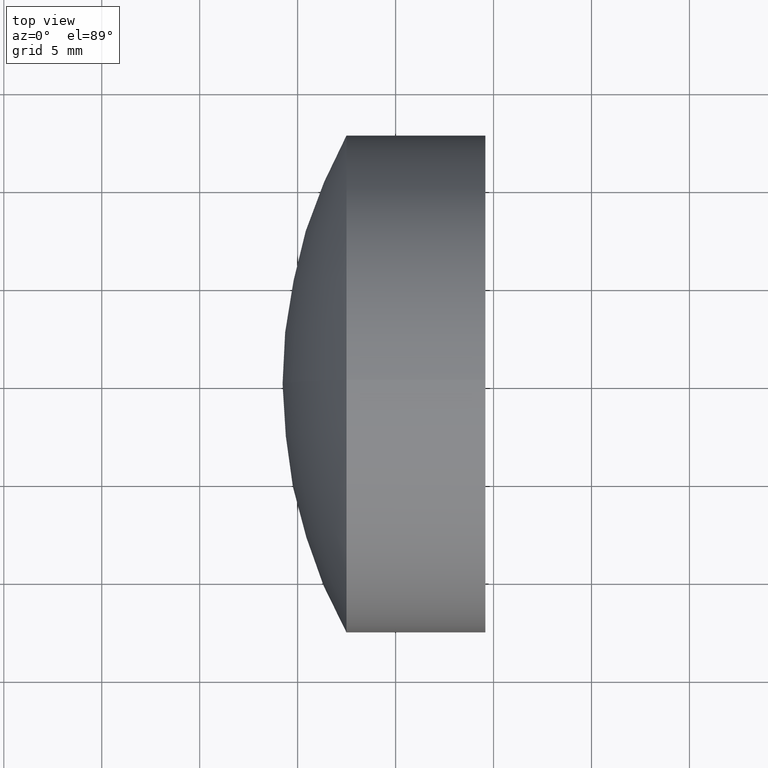
[diagram: clean part render]
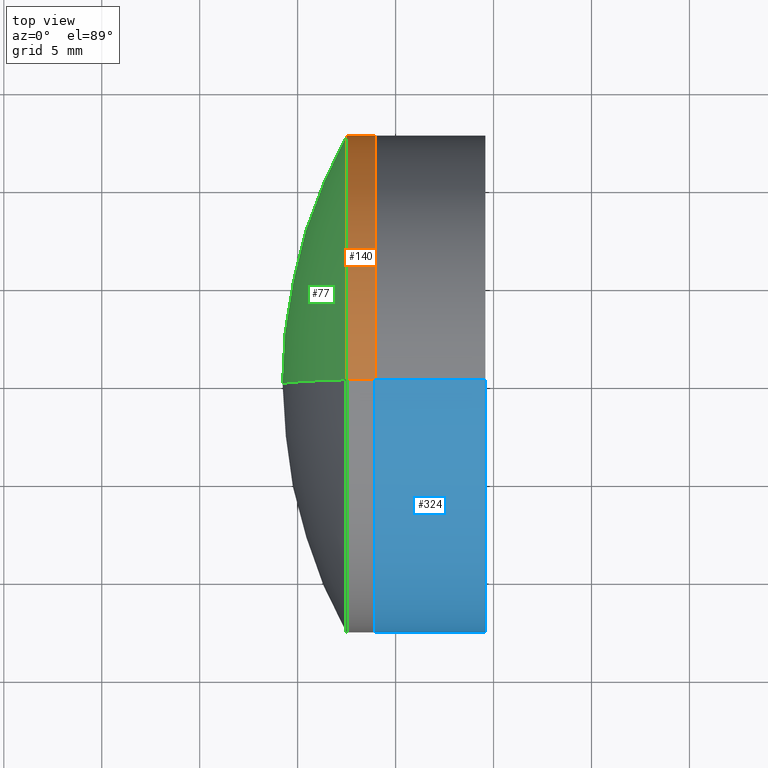
[diagram: same view with three faces highlighted in distinct colors, each labeled with its STEP entity id]
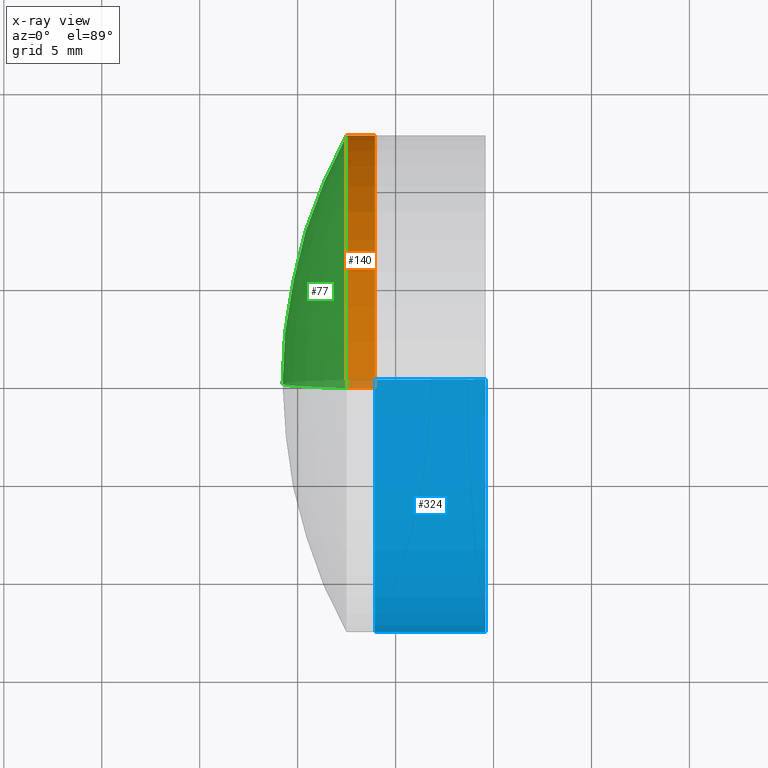
[diagram: x-ray of the same camera — body ghosted, the three highlighted faces saturated]
A machine part, top view with three faces highlighted in distinct colors.
The next image is the same camera in x-ray (body ghosted, the three faces saturated) — at least one of them is partly hidden behind the body in this view.
Their STEP definitions:

[orange] entity #140 — the highlighted cylindrical surface (partial cylindrical patch) has radius 12.7 mm, axis along (-1, -0, -0).
#6 = VERTEX_POINT ( 'NONE', #75 ) ;
#14 = EDGE_CURVE ( 'NONE', #327, #318, #218, .T. ) ;
#19 = EDGE_CURVE ( 'NONE', #6, #160, #177, .T. ) ;
#24 = DIRECTION ( 'NONE',  ( 0.0000000000000000000, 0.0000000000000000000, 1.000000000000000000 ) ) ;
#36 = EDGE_CURVE ( 'NONE', #327, #6, #191, .T. ) ;
#40 = ORIENTED_EDGE ( 'NONE', *, *, #19, .T. ) ;
#50 = DIRECTION ( 'NONE',  ( -1.000000000000000000, -0.0000000000000000000, -0.0000000000000000000 ) ) ;
#75 = CARTESIAN_POINT ( 'NONE',  ( 38.94353614673029500, 1.555301434917138000E-015, -12.69999999999999400 ) ) ;
#76 = CARTESIAN_POINT ( 'NONE',  ( 38.94353614673029500, 0.0000000000000000000, 12.69999999999999400 ) ) ;
#82 = DIRECTION ( 'NONE',  ( -1.000000000000000000, -0.0000000000000000000, -0.0000000000000000000 ) ) ;
#89 = DIRECTION ( 'NONE',  ( -1.000000000000000000, -0.0000000000000000000, -0.0000000000000000000 ) ) ;
#105 = AXIS2_PLACEMENT_3D ( 'NONE', #150, #82, #323 ) ;
#116 = CYLINDRICAL_SURFACE ( 'NONE', #105, 12.69999999999999400 ) ;
#140 = ADVANCED_FACE ( 'NONE', ( #153 ), #116, .T. ) ;
#144 = DIRECTION ( 'NONE',  ( 0.0000000000000000000, 0.0000000000000000000, 1.000000000000000000 ) ) ;
#150 = CARTESIAN_POINT ( 'NONE',  ( -0.8160621761658039000, 0.0000000000000000000, 0.0000000000000000000 ) ) ;
#153 = FACE_OUTER_BOUND ( 'NONE', #225, .T. ) ;
#158 = AXIS2_PLACEMENT_3D ( 'NONE', #264, #89, #24 ) ;
#160 = VERTEX_POINT ( 'NONE', #346 ) ;
#177 = LINE ( 'NONE', #204, #186 ) ;
#186 = VECTOR ( 'NONE', #50, 1000.000000000000000 ) ;
#191 = CIRCLE ( 'NONE', #158, 12.69999999999999400 ) ;
#199 = AXIS2_PLACEMENT_3D ( 'NONE', #246, #248, #144 ) ;
#200 = VECTOR ( 'NONE', #259, 1000.000000000000000 ) ;
#204 = CARTESIAN_POINT ( 'NONE',  ( -0.8160621761658039000, 1.555301434917138000E-015, -12.69999999999999400 ) ) ;
#218 = LINE ( 'NONE', #252, #200 ) ;
#222 = ORIENTED_EDGE ( 'NONE', *, *, #14, .F. ) ;
#225 = EDGE_LOOP ( 'NONE', ( #234, #40, #260, #222 ) ) ;
#234 = ORIENTED_EDGE ( 'NONE', *, *, #36, .T. ) ;
#246 = CARTESIAN_POINT ( 'NONE',  ( 37.49133736512716600, 0.0000000000000000000, 0.0000000000000000000 ) ) ;
#248 = DIRECTION ( 'NONE',  ( -1.000000000000000000, -0.0000000000000000000, -0.0000000000000000000 ) ) ;
#252 = CARTESIAN_POINT ( 'NONE',  ( -0.8160621761658039000, 0.0000000000000000000, 12.69999999999999400 ) ) ;
#259 = DIRECTION ( 'NONE',  ( -1.000000000000000000, -0.0000000000000000000, -0.0000000000000000000 ) ) ;
#260 = ORIENTED_EDGE ( 'NONE', *, *, #340, .F. ) ;
#261 = CARTESIAN_POINT ( 'NONE',  ( 37.49133736512716600, -1.555301434917138000E-015, 12.69999999999999600 ) ) ;
#264 = CARTESIAN_POINT ( 'NONE',  ( 38.94353614673029500, 0.0000000000000000000, 0.0000000000000000000 ) ) ;
#301 = CIRCLE ( 'NONE', #199, 12.69999999999999400 ) ;
#318 = VERTEX_POINT ( 'NONE', #261 ) ;
#323 = DIRECTION ( 'NONE',  ( 0.0000000000000000000, 0.0000000000000000000, 1.000000000000000000 ) ) ;
#327 = VERTEX_POINT ( 'NONE', #76 ) ;
#340 = EDGE_CURVE ( 'NONE', #318, #160, #301, .T. ) ;
#346 = CARTESIAN_POINT ( 'NONE',  ( 37.49133736512716600, 0.0000000000000000000, -12.69999999999999600 ) ) ;

[blue] entity #324 — the highlighted cylindrical surface (partial cylindrical patch) has radius 12.7 mm, axis along (-1, -0, -0).
#3 = VECTOR ( 'NONE', #169, 1000.000000000000000 ) ;
#31 = VERTEX_POINT ( 'NONE', #237 ) ;
#32 = ORIENTED_EDGE ( 'NONE', *, *, #345, .T. ) ;
#34 = CARTESIAN_POINT ( 'NONE',  ( -0.5519199926577972300, 1.555301434917140600E-015, -12.70000000000001700 ) ) ;
#35 = DIRECTION ( 'NONE',  ( -1.000000000000000000, -0.0000000000000000000, -0.0000000000000000000 ) ) ;
#53 = EDGE_CURVE ( 'NONE', #84, #253, #172, .T. ) ;
#66 = CARTESIAN_POINT ( 'NONE',  ( 44.58527516249046100, -1.555301434917136900E-015, 12.69999999999998500 ) ) ;
#79 = ORIENTED_EDGE ( 'NONE', *, *, #90, .F. ) ;
#84 = VERTEX_POINT ( 'NONE', #334 ) ;
#90 = EDGE_CURVE ( 'NONE', #253, #31, #157, .T. ) ;
#92 = CARTESIAN_POINT ( 'NONE',  ( -0.5519199926577972300, 0.0000000000000000000, 12.70000000000001700 ) ) ;
#99 = CYLINDRICAL_SURFACE ( 'NONE', #219, 12.70000000000001700 ) ;
#103 = CIRCLE ( 'NONE', #203, 12.70000000000001700 ) ;
#157 = CIRCLE ( 'NONE', #328, 12.70000000000001900 ) ;
#159 = VECTOR ( 'NONE', #290, 1000.000000000000000 ) ;
#169 = DIRECTION ( 'NONE',  ( -1.000000000000000000, -0.0000000000000000000, -0.0000000000000000000 ) ) ;
#172 = LINE ( 'NONE', #34, #159 ) ;
#184 = FACE_OUTER_BOUND ( 'NONE', #212, .T. ) ;
#190 = DIRECTION ( 'NONE',  ( 0.0000000000000000000, 0.0000000000000000000, 1.000000000000000000 ) ) ;
#203 = AXIS2_PLACEMENT_3D ( 'NONE', #308, #347, #190 ) ;
#212 = EDGE_LOOP ( 'NONE', ( #240, #32, #335, #79 ) ) ;
#217 = DIRECTION ( 'NONE',  ( -1.000000000000000000, -0.0000000000000000000, -0.0000000000000000000 ) ) ;
#219 = AXIS2_PLACEMENT_3D ( 'NONE', #267, #217, #239 ) ;
#237 = CARTESIAN_POINT ( 'NONE',  ( 38.94353614673030300, 0.0000000000000000000, 12.70000000000001000 ) ) ;
#239 = DIRECTION ( 'NONE',  ( 0.0000000000000000000, 0.0000000000000000000, 1.000000000000000000 ) ) ;
#240 = ORIENTED_EDGE ( 'NONE', *, *, #53, .F. ) ;
#253 = VERTEX_POINT ( 'NONE', #278 ) ;
#267 = CARTESIAN_POINT ( 'NONE',  ( -0.5519199926577972300, 0.0000000000000000000, 0.0000000000000000000 ) ) ;
#276 = LINE ( 'NONE', #92, #3 ) ;
#277 = EDGE_CURVE ( 'NONE', #303, #31, #276, .T. ) ;
#278 = CARTESIAN_POINT ( 'NONE',  ( 38.94353614673030300, 1.555301434917139600E-015, -12.70000000000002100 ) ) ;
#285 = DIRECTION ( 'NONE',  ( 0.0000000000000000000, 0.0000000000000000000, 1.000000000000000000 ) ) ;
#290 = DIRECTION ( 'NONE',  ( -1.000000000000000000, -0.0000000000000000000, -0.0000000000000000000 ) ) ;
#293 = CARTESIAN_POINT ( 'NONE',  ( 38.94353614673030300, 0.0000000000000000000, 0.0000000000000000000 ) ) ;
#303 = VERTEX_POINT ( 'NONE', #66 ) ;
#308 = CARTESIAN_POINT ( 'NONE',  ( 44.58527516249045400, 0.0000000000000000000, 0.0000000000000000000 ) ) ;
#324 = ADVANCED_FACE ( 'NONE', ( #184 ), #99, .T. ) ;
#328 = AXIS2_PLACEMENT_3D ( 'NONE', #293, #35, #285 ) ;
#334 = CARTESIAN_POINT ( 'NONE',  ( 44.58527516249046100, 0.0000000000000000000, -12.69999999999998500 ) ) ;
#335 = ORIENTED_EDGE ( 'NONE', *, *, #277, .T. ) ;
#345 = EDGE_CURVE ( 'NONE', #84, #303, #103, .T. ) ;
#347 = DIRECTION ( 'NONE',  ( -1.000000000000000000, -0.0000000000000000000, -0.0000000000000000000 ) ) ;

[green] entity #77 — the highlighted spherical surface has radius 26.36 mm.
#16 = VERTEX_POINT ( 'NONE', #69 ) ;
#33 = ORIENTED_EDGE ( 'NONE', *, *, #340, .T. ) ;
#41 = CARTESIAN_POINT ( 'NONE',  ( 60.59024643027568400, 0.0000000000000000000, 6.240728188754496800E-016 ) ) ;
#62 = CIRCLE ( 'NONE', #173, 26.36000000000001000 ) ;
#69 = CARTESIAN_POINT ( 'NONE',  ( 34.23024643027567700, 0.0000000000000000000, -9.900116624007624700E-016 ) ) ;
#71 = CARTESIAN_POINT ( 'NONE',  ( 60.59024643027568400, 0.0000000000000000000, 6.240728188754496800E-016 ) ) ;
#77 = ADVANCED_FACE ( 'NONE', ( #149 ), #145, .T. ) ;
#109 = CIRCLE ( 'NONE', #336, 26.36000000000001000 ) ;
#122 = AXIS2_PLACEMENT_3D ( 'NONE', #71, #138, #194 ) ;
#138 = DIRECTION ( 'NONE',  ( -0.0000000000000000000, -1.000000000000000000, -0.0000000000000000000 ) ) ;
#144 = DIRECTION ( 'NONE',  ( 0.0000000000000000000, 0.0000000000000000000, 1.000000000000000000 ) ) ;
#145 = SPHERICAL_SURFACE ( 'NONE', #122, 26.36000000000001000 ) ;
#149 = FACE_OUTER_BOUND ( 'NONE', #330, .T. ) ;
#156 = DIRECTION ( 'NONE',  ( 0.0000000000000000000, 0.0000000000000000000, 1.000000000000000000 ) ) ;
#160 = VERTEX_POINT ( 'NONE', #346 ) ;
#166 = EDGE_CURVE ( 'NONE', #318, #16, #109, .T. ) ;
#173 = AXIS2_PLACEMENT_3D ( 'NONE', #205, #175, #156 ) ;
#175 = DIRECTION ( 'NONE',  ( 0.0000000000000000000, 1.000000000000000000, -0.0000000000000000000 ) ) ;
#179 = DIRECTION ( 'NONE',  ( 0.0000000000000000000, -1.000000000000000000, -1.224646799147353200E-016 ) ) ;
#194 = DIRECTION ( 'NONE',  ( 0.0000000000000000000, 0.0000000000000000000, -1.000000000000000000 ) ) ;
#199 = AXIS2_PLACEMENT_3D ( 'NONE', #246, #248, #144 ) ;
#205 = CARTESIAN_POINT ( 'NONE',  ( 60.59024643027568400, 0.0000000000000000000, 6.240728188754496800E-016 ) ) ;
#246 = CARTESIAN_POINT ( 'NONE',  ( 37.49133736512716600, 0.0000000000000000000, 0.0000000000000000000 ) ) ;
#248 = DIRECTION ( 'NONE',  ( -1.000000000000000000, -0.0000000000000000000, -0.0000000000000000000 ) ) ;
#258 = ORIENTED_EDGE ( 'NONE', *, *, #262, .T. ) ;
#261 = CARTESIAN_POINT ( 'NONE',  ( 37.49133736512716600, -1.555301434917138000E-015, 12.69999999999999600 ) ) ;
#262 = EDGE_CURVE ( 'NONE', #160, #16, #62, .T. ) ;
#291 = ORIENTED_EDGE ( 'NONE', *, *, #166, .F. ) ;
#301 = CIRCLE ( 'NONE', #199, 12.69999999999999400 ) ;
#306 = DIRECTION ( 'NONE',  ( 0.0000000000000000000, 1.224646799147353200E-016, -1.000000000000000000 ) ) ;
#318 = VERTEX_POINT ( 'NONE', #261 ) ;
#330 = EDGE_LOOP ( 'NONE', ( #291, #33, #258 ) ) ;
#336 = AXIS2_PLACEMENT_3D ( 'NONE', #41, #179, #306 ) ;
#340 = EDGE_CURVE ( 'NONE', #318, #160, #301, .T. ) ;
#346 = CARTESIAN_POINT ( 'NONE',  ( 37.49133736512716600, 0.0000000000000000000, -12.69999999999999600 ) ) ;